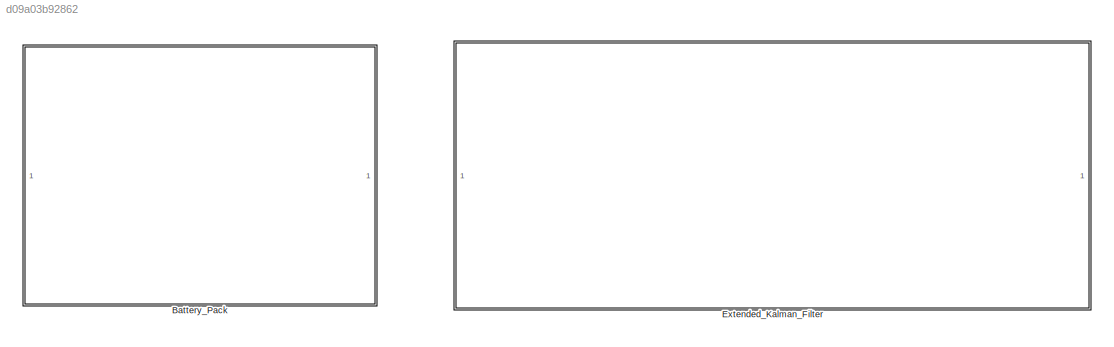
MODEL slx_d09a03b92862
KIND model
CONFIG AbsTol = auto
CONFIG EnableMultiTasking = off
CONFIG FixedStep = 0.05
CONFIG MaxStep = 0.050
CONFIG MinStep = auto
CONFIG RelTol = 1e-3
CONFIG SampleTimeConstraint = Unconstrained
CONFIG SolverName = FixedStepAuto
CONFIG StartTime = 0.0
CONFIG StopTime = 26700
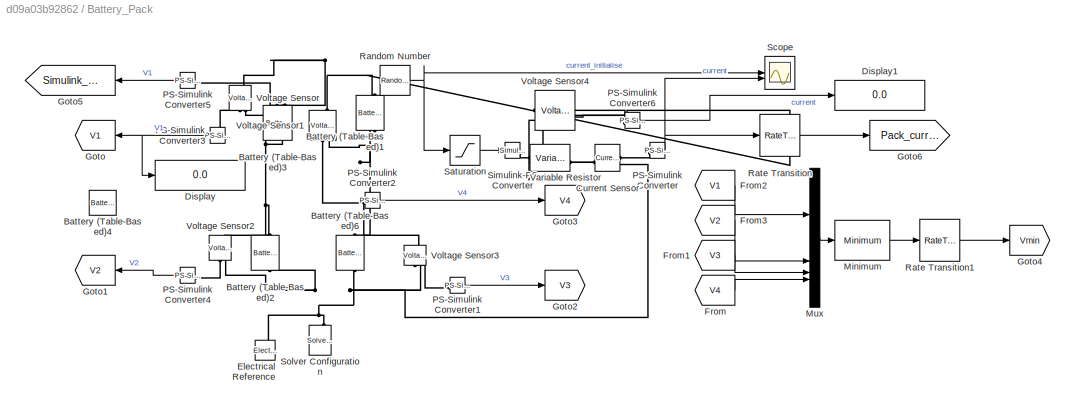
BLOCK [SubSystem] Battery_Pack
BLOCK [Reference] Battery_Pack/Battery (Table-Based)1  REF=batteryecm_lib/Battery
(Table-Based)
  LibrarySourceBlock = batt_lib/Cells/Battery\n(Table-Based)
  NameLocation = right
  SourceBlock = batteryecm_lib/Battery\n(Table-Based)
  SourceType = Battery\n(Table-Based)
BLOCK [Reference] Battery_Pack/Battery (Table-Based)2  REF=batteryecm_lib/Battery
(Table-Based)
  LibrarySourceBlock = batt_lib/Cells/Battery\n(Table-Based)
  NameLocation = right
  SourceBlock = batteryecm_lib/Battery\n(Table-Based)
  SourceType = Battery\n(Table-Based)
BLOCK [Reference] Battery_Pack/Battery (Table-Based)3  REF=batteryecm_lib/Battery
(Table-Based)
  LibrarySourceBlock = batt_lib/Cells/Battery\n(Table-Based)
  NameLocation = right
  SourceBlock = batteryecm_lib/Battery\n(Table-Based)
  SourceType = Battery\n(Table-Based)
BLOCK [Reference] Battery_Pack/Battery (Table-Based)4  REF=batteryecm_lib/Battery
(Table-Based)
  Commented = on
  LibrarySourceBlock = batt_lib/Cells/Battery\n(Table-Based)
  NameLocation = right
  SourceBlock = batteryecm_lib/Battery\n(Table-Based)
  SourceType = Battery\n(Table-Based)
BLOCK [Reference] Battery_Pack/Battery (Table-Based)6  REF=batteryecm_lib/Battery
(Table-Based)
  LibrarySourceBlock = batt_lib/Cells/Battery\n(Table-Based)
  NameLocation = right
  SourceBlock = batteryecm_lib/Battery\n(Table-Based)
  SourceType = Battery\n(Table-Based)
BLOCK [Reference] Battery_Pack/Current Sensor  REF=fl_lib/Electrical/Electrical Sensors/Current Sensor
  SourceBlock = fl_lib/Electrical/Electrical Sensors/Current Sensor
  SourceType = Current Sensor
BLOCK [Display] Battery_Pack/Display
  Decimation = 1
BLOCK [Display] Battery_Pack/Display1
  Decimation = 1
BLOCK [Reference] Battery_Pack/Electrical Reference  REF=fl_lib/Electrical/Electrical Elements/Electrical Reference
  NameLocation = right
  SourceBlock = fl_lib/Electrical/Electrical Elements/Electrical Reference
  SourceType = Electrical Reference
BLOCK [From] Battery_Pack/From
  GotoTag = V4
  TagVisibility = global
BLOCK [From] Battery_Pack/From1
  GotoTag = V3
  TagVisibility = global
BLOCK [From] Battery_Pack/From2
  GotoTag = V1
  NameLocation = top
  TagVisibility = global
BLOCK [From] Battery_Pack/From3
  GotoTag = V2
  NameLocation = top
  TagVisibility = global
BLOCK [Goto] Battery_Pack/Goto
  GotoTag = V1
  NameLocation = top
  TagVisibility = global
BLOCK [Goto] Battery_Pack/Goto1
  GotoTag = V2
  NameLocation = top
  TagVisibility = global
BLOCK [Goto] Battery_Pack/Goto2
  GotoTag = V3
  TagVisibility = global
BLOCK [Goto] Battery_Pack/Goto3
  GotoTag = V4
  TagVisibility = global
BLOCK [Goto] Battery_Pack/Goto4
  GotoTag = Vmin
  TagVisibility = global
BLOCK [Goto] Battery_Pack/Goto5
  GotoTag = Simulink_SOC
  NameLocation = top
  TagVisibility = global
BLOCK [Goto] Battery_Pack/Goto6
  GotoTag = Pack_current
  TagVisibility = global
BLOCK [Reference] Battery_Pack/Minimum  REF=dspstat3/Minimum
  LibrarySourceBlock = dsphdlsupportstat/Minimum
  SourceBlock = dspstat3/Minimum
  SourceType = Minimum
  UserDataPersistent = on
BLOCK [Mux] Battery_Pack/Mux
  DisplayOption = bar
BLOCK [Reference] Battery_Pack/PS-Simulink Converter  REF=nesl_utility/PS-Simulink
Converter
  SourceBlock = nesl_utility/PS-Simulink\nConverter
  SourceType = PS-Simulink\nConverter
BLOCK [Reference] Battery_Pack/PS-Simulink Converter1  REF=nesl_utility/PS-Simulink
Converter
  SourceBlock = nesl_utility/PS-Simulink\nConverter
  SourceType = PS-Simulink\nConverter
BLOCK [Reference] Battery_Pack/PS-Simulink Converter2  REF=nesl_utility/PS-Simulink
Converter
  SourceBlock = nesl_utility/PS-Simulink\nConverter
  SourceType = PS-Simulink\nConverter
BLOCK [Reference] Battery_Pack/PS-Simulink Converter3  REF=nesl_utility/PS-Simulink
Converter
  NameLocation = top
  SourceBlock = nesl_utility/PS-Simulink\nConverter
  SourceType = PS-Simulink\nConverter
BLOCK [Reference] Battery_Pack/PS-Simulink Converter4  REF=nesl_utility/PS-Simulink
Converter
  NameLocation = top
  SourceBlock = nesl_utility/PS-Simulink\nConverter
  SourceType = PS-Simulink\nConverter
BLOCK [Reference] Battery_Pack/PS-Simulink Converter5  REF=nesl_utility/PS-Simulink
Converter
  NameLocation = top
  SourceBlock = nesl_utility/PS-Simulink\nConverter
  SourceType = PS-Simulink\nConverter
BLOCK [Reference] Battery_Pack/PS-Simulink Converter6  REF=nesl_utility/PS-Simulink
Converter
  SourceBlock = nesl_utility/PS-Simulink\nConverter
  SourceType = PS-Simulink\nConverter
BLOCK [RandomNumber] Battery_Pack/Random Number
  Mean = 1.5
  SampleTime = 0.1
  Variance = .2
BLOCK [RateTransition] Battery_Pack/Rate Transition
  OutPortSampleTime = 0.05
BLOCK [RateTransition] Battery_Pack/Rate Transition1
  OutPortSampleTime = 0.05
BLOCK [Saturate] Battery_Pack/Saturation
  LowerLimit = .5
  UpperLimit = 3
BLOCK [Scope] Battery_Pack/Scope
  Floating = off
  NumInputPorts = 2
  ScopeSpecificationString = Simulink.scopes.TimeScopeBlockCfg('CurrentConfiguration', extmgr.ConfigurationSet(extmgr.Configuration('Core','General UI',true),extmgr.Configuration('Core','Source UI',true),extmgr.Configuration('Sources','WiredSimulink',true),extmgr.Configuration('Visuals','Time Domain',true,'SerializedDisplays',{struct('MinYLimReal','-1.85005','MaxYLimReal','18.51033','YLabelReal','','MinYLimMag','0.00000','Max...<+1585ch>
BLOCK [Reference] Battery_Pack/Simulink-PS Converter  REF=nesl_utility/Simulink-PS
Converter
  SourceBlock = nesl_utility/Simulink-PS\nConverter
  SourceType = Simulink-PS\nConverter
BLOCK [Reference] Battery_Pack/Solver Configuration  REF=nesl_utility/Solver
Configuration
  NameLocation = right
  SourceBlock = nesl_utility/Solver\nConfiguration
  SourceType = Solver\nConfiguration
BLOCK [Reference] Battery_Pack/Variable Resistor  REF=fl_lib/Electrical/Electrical Elements/Variable Resistor
  SourceBlock = fl_lib/Electrical/Electrical Elements/Variable Resistor
  SourceType = Variable Resistor
BLOCK [Reference] Battery_Pack/Voltage Sensor  REF=fl_lib/Electrical/Electrical Sensors/Voltage Sensor
  NameLocation = right
  SourceBlock = fl_lib/Electrical/Electrical Sensors/Voltage Sensor
  SourceType = Voltage Sensor
BLOCK [Reference] Battery_Pack/Voltage Sensor1  REF=fl_lib/Electrical/Electrical Sensors/Voltage Sensor
  NameLocation = right
  SourceBlock = fl_lib/Electrical/Electrical Sensors/Voltage Sensor
  SourceType = Voltage Sensor
BLOCK [Reference] Battery_Pack/Voltage Sensor2  REF=fl_lib/Electrical/Electrical Sensors/Voltage Sensor
  NameLocation = right
  SourceBlock = fl_lib/Electrical/Electrical Sensors/Voltage Sensor
  SourceType = Voltage Sensor
BLOCK [Reference] Battery_Pack/Voltage Sensor3  REF=fl_lib/Electrical/Electrical Sensors/Voltage Sensor
  NameLocation = right
  SourceBlock = fl_lib/Electrical/Electrical Sensors/Voltage Sensor
  SourceType = Voltage Sensor
BLOCK [Reference] Battery_Pack/Voltage Sensor4  REF=fl_lib/Electrical/Electrical Sensors/Voltage Sensor
  NameLocation = top
  SourceBlock = fl_lib/Electrical/Electrical Sensors/Voltage Sensor
  SourceType = Voltage Sensor
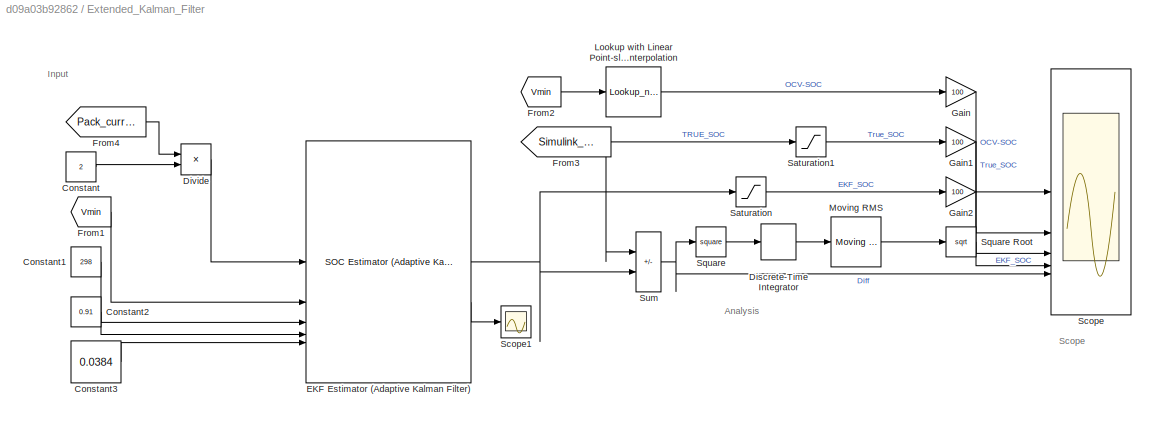
BLOCK [SubSystem] Extended_Kalman_Filter 
BLOCK [Constant] Extended_Kalman_Filter /Constant
  Value = 2
BLOCK [Constant] Extended_Kalman_Filter /Constant1
  Value = 298
BLOCK [Constant] Extended_Kalman_Filter /Constant2
  Value = 0.91
BLOCK [Constant] Extended_Kalman_Filter /Constant3
  Value = 0.0384
BLOCK [DiscreteIntegrator] Extended_Kalman_Filter /Discrete-Time Integrator
  ICPrevOutput = DiscIntNeverNeededParam
  ICPrevScaledInput = DiscIntNeverNeededParam
  InitialConditionSetting = Auto
  SampleTime = -1
BLOCK [Product] Extended_Kalman_Filter /Divide
  Inputs = */
BLOCK [Reference] Extended_Kalman_Filter /EKF Estimator (Adaptive Kalman Filter)  REF=BatteryEstimators/SOC Estimator
(Adaptive Kalman Filter)
  LibrarySourceBlock = batt_sl_lib/Estimators/SOC Estimator\n(Adaptive Kalman Filter)
  SourceBlock = BatteryEstimators/SOC Estimator\n(Adaptive Kalman Filter)
  SourceType = SOC Estimator (Adaptive Kalman Filter)
BLOCK [From] Extended_Kalman_Filter /From1
  GotoTag = Vmin
  TagVisibility = global
BLOCK [From] Extended_Kalman_Filter /From2
  GotoTag = Vmin
  TagVisibility = global
BLOCK [From] Extended_Kalman_Filter /From3
  GotoTag = Simulink_SOC
  NameLocation = top
  TagVisibility = global
BLOCK [From] Extended_Kalman_Filter /From4
  GotoTag = Pack_current
  TagVisibility = global
BLOCK [Gain] Extended_Kalman_Filter /Gain
  Gain = 100
BLOCK [Gain] Extended_Kalman_Filter /Gain1
  Gain = 100
BLOCK [Gain] Extended_Kalman_Filter /Gain2
  Gain = 100
BLOCK [Lookup_n-D] Extended_Kalman_Filter /Lookup with Linear Point-slope Interpolation
  BreakpointsForDimension1 = [3.49, 3.55,  3.62,  3.71,  3.91,  4.07,  4.19]
  InputPortMap = u0
  InternalRulePriority = Speed
  InterpMethod = Linear Lagrange
  NumberOfTableDimensions = 1
  RndMeth = Simplest
  Table = [0, .1, .25, .5, .75, .9, 1]
BLOCK [Reference] Extended_Kalman_Filter /Moving RMS  REF=dspstat3/Moving
RMS
  SourceBlock = dspstat3/Moving\nRMS
  SourceType = dsp.simulink.MovingRMS
BLOCK [Saturate] Extended_Kalman_Filter /Saturation
  LowerLimit = 0
  UpperLimit = 1
BLOCK [Saturate] Extended_Kalman_Filter /Saturation1
  LowerLimit = 0
  UpperLimit = 1
BLOCK [Scope] Extended_Kalman_Filter /Scope
  Floating = off
  NumInputPorts = 5
  ScopeSpecificationString = Simulink.scopes.TimeScopeBlockCfg('CurrentConfiguration', extmgr.ConfigurationSet(extmgr.Configuration('Core','General UI',true),extmgr.Configuration('Core','Source UI',true),extmgr.Configuration('Sources','WiredSimulink',true,'DataLoggingVariableName','ScopeData1'),extmgr.Configuration('Visuals','Time Domain',true,'SerializedDisplays',{struct('MinYLimReal','86.58437','MaxYLimReal','101.17498','YL...<+1848ch>
BLOCK [Scope] Extended_Kalman_Filter /Scope1
  Floating = off
  NumInputPorts = 1
  ScopeSpecificationString = Simulink.scopes.TimeScopeBlockCfg('CurrentConfiguration', extmgr.ConfigurationSet(extmgr.Configuration('Core','General UI',true),extmgr.Configuration('Core','Source UI',true),extmgr.Configuration('Sources','WiredSimulink',true,'DataLoggingVariableName','ScopeData2'),extmgr.Configuration('Visuals','Time Domain',true,'SerializedDisplays',{struct('MinYLimReal','-0.01438','MaxYLimReal','0.04427','YLab...<+1518ch>
BLOCK [Math] Extended_Kalman_Filter /Square
  Operator = square
BLOCK [Sqrt] Extended_Kalman_Filter /Square Root
BLOCK [Sum] Extended_Kalman_Filter /Sum
  IconShape = rectangular
  Inputs = |+-
ANNOTATION Extended_Kalman_Filter : Analysis
ANNOTATION Extended_Kalman_Filter : Scope
ANNOTATION Extended_Kalman_Filter : Input
LINE Battery_Pack/From1:1 -> Battery_Pack/Mux:3
LINE Battery_Pack/From2:1 -> Battery_Pack/Mux:1
LINE Battery_Pack/From3:1 -> Battery_Pack/Mux:2
LINE Battery_Pack/From:1 -> Battery_Pack/Mux:4
LINE Battery_Pack/Minimum:1 -> Battery_Pack/Rate Transition1:1
LINE Battery_Pack/Mux:1 -> Battery_Pack/Minimum:1
LINE Battery_Pack/PS-Simulink Converter1:1 -> Battery_Pack/Goto2:1
LINE Battery_Pack/PS-Simulink Converter2:1 -> Battery_Pack/Goto3:1
NET Battery_Pack/PS-Simulink Converter3:1 -> Battery_Pack/Display:1, Battery_Pack/Goto:1
LINE Battery_Pack/PS-Simulink Converter4:1 -> Battery_Pack/Goto1:1
LINE Battery_Pack/PS-Simulink Converter5:1 -> Battery_Pack/Goto5:1
LINE Battery_Pack/PS-Simulink Converter6:1 -> Battery_Pack/Display1:1
NET Battery_Pack/PS-Simulink Converter:1 -> Battery_Pack/Rate Transition:1, Battery_Pack/Scope:2
NET Battery_Pack/Random Number:1 -> Battery_Pack/Saturation:1, Battery_Pack/Scope:1
LINE Battery_Pack/Rate Transition1:1 -> Battery_Pack/Goto4:1
LINE Battery_Pack/Rate Transition:1 -> Battery_Pack/Goto6:1
LINE Battery_Pack/Saturation:1 -> Battery_Pack/Simulink-PS Converter:1
LINE Extended_Kalman_Filter /Constant1:1 -> Extended_Kalman_Filter /EKF Estimator (Adaptive Kalman Filter):3
LINE Extended_Kalman_Filter /Constant2:1 -> Extended_Kalman_Filter /EKF Estimator (Adaptive Kalman Filter):4
LINE Extended_Kalman_Filter /Constant3:1 -> Extended_Kalman_Filter /EKF Estimator (Adaptive Kalman Filter):5
LINE Extended_Kalman_Filter /Constant:1 -> Extended_Kalman_Filter /Divide:2
LINE Extended_Kalman_Filter /Discrete-Time Integrator:1 -> Extended_Kalman_Filter /Moving RMS:1
LINE Extended_Kalman_Filter /Divide:1 -> Extended_Kalman_Filter /EKF Estimator (Adaptive Kalman Filter):1
NET Extended_Kalman_Filter /EKF Estimator (Adaptive Kalman Filter):1 -> Extended_Kalman_Filter /Saturation:1, Extended_Kalman_Filter /Sum:2
LINE Extended_Kalman_Filter /EKF Estimator (Adaptive Kalman Filter):2 -> Extended_Kalman_Filter /Scope1:1
LINE Extended_Kalman_Filter /From1:1 -> Extended_Kalman_Filter /EKF Estimator (Adaptive Kalman Filter):2
LINE Extended_Kalman_Filter /From2:1 -> Extended_Kalman_Filter /Lookup with Linear Point-slope Interpolation:1
NET Extended_Kalman_Filter /From3:1 -> Extended_Kalman_Filter /Saturation1:1, Extended_Kalman_Filter /Sum:1
LINE Extended_Kalman_Filter /From4:1 -> Extended_Kalman_Filter /Divide:1
LINE Extended_Kalman_Filter /Gain1:1 -> Extended_Kalman_Filter /Scope:2
LINE Extended_Kalman_Filter /Gain2:1 -> Extended_Kalman_Filter /Scope:3
LINE Extended_Kalman_Filter /Gain:1 -> Extended_Kalman_Filter /Scope:1
LINE Extended_Kalman_Filter /Lookup with Linear Point-slope Interpolation:1 -> Extended_Kalman_Filter /Gain:1
LINE Extended_Kalman_Filter /Moving RMS:1 -> Extended_Kalman_Filter /Square Root:1
LINE Extended_Kalman_Filter /Saturation1:1 -> Extended_Kalman_Filter /Gain1:1
LINE Extended_Kalman_Filter /Saturation:1 -> Extended_Kalman_Filter /Gain2:1
LINE Extended_Kalman_Filter /Square Root:1 -> Extended_Kalman_Filter /Scope:4
LINE Extended_Kalman_Filter /Square:1 -> Extended_Kalman_Filter /Discrete-Time Integrator:1
NET Extended_Kalman_Filter /Sum:1 -> Extended_Kalman_Filter /Scope:5, Extended_Kalman_Filter /Square:1
PNET net1: Battery_Pack/Battery (Table-Based)1:LConn1 -- Battery_Pack/Battery (Table-Based)3:LConn1 -- Battery_Pack/Variable Resistor:LConn2 -- Battery_Pack/Voltage Sensor1:LConn1 -- Battery_Pack/Voltage Sensor4:LConn1 -- Battery_Pack/Voltage Sensor:LConn1
PNET net2: Battery_Pack/Battery (Table-Based)1:RConn1 -- Battery_Pack/Battery (Table-Based)6:LConn1 -- Battery_Pack/Voltage Sensor1:RConn2 -- Battery_Pack/Voltage Sensor3:LConn1
PNET net3: Battery_Pack/Battery (Table-Based)2:LConn1 -- Battery_Pack/Battery (Table-Based)3:RConn1 -- Battery_Pack/Voltage Sensor2:LConn1 -- Battery_Pack/Voltage Sensor:RConn2
PNET net4: Battery_Pack/Battery (Table-Based)2:RConn1 -- Battery_Pack/Battery (Table-Based)6:RConn1 -- Battery_Pack/Current Sensor:RConn2 -- Battery_Pack/Electrical Reference:LConn1 -- Battery_Pack/Solver Configuration:RConn1 -- Battery_Pack/Voltage Sensor2:RConn2 -- Battery_Pack/Voltage Sensor3:RConn2
PLINE Battery_Pack/Battery (Table-Based)3:LConn2 -- Battery_Pack/PS-Simulink Converter5:LConn1
PNET net5: Battery_Pack/Current Sensor:LConn1 -- Battery_Pack/Variable Resistor:RConn1 -- Battery_Pack/Voltage Sensor4:RConn2
PLINE Battery_Pack/Current Sensor:RConn1 -- Battery_Pack/PS-Simulink Converter:LConn1
PLINE Battery_Pack/PS-Simulink Converter1:LConn1 -- Battery_Pack/Voltage Sensor3:RConn1
PLINE Battery_Pack/PS-Simulink Converter2:LConn1 -- Battery_Pack/Voltage Sensor1:RConn1
PLINE Battery_Pack/PS-Simulink Converter3:LConn1 -- Battery_Pack/Voltage Sensor:RConn1
PLINE Battery_Pack/PS-Simulink Converter4:LConn1 -- Battery_Pack/Voltage Sensor2:RConn1
PLINE Battery_Pack/PS-Simulink Converter6:LConn1 -- Battery_Pack/Voltage Sensor4:RConn1
PLINE Battery_Pack/Simulink-PS Converter:RConn1 -- Battery_Pack/Variable Resistor:LConn1
note: NET lines group one-source signal fan-out (src -> all destinations, sorted); 1:1 wires keep LINE; PNET lines group multi-terminal physical nets as a canonical sorted terminal list (undirected conserving connections); 2-terminal nets keep the pairwise PLINE form
